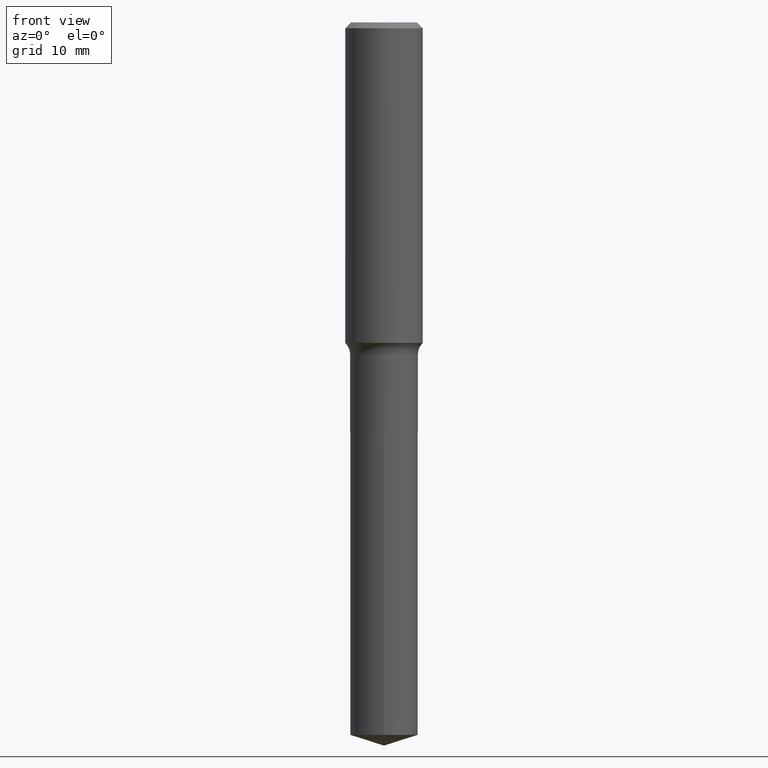
[diagram: clean part render]
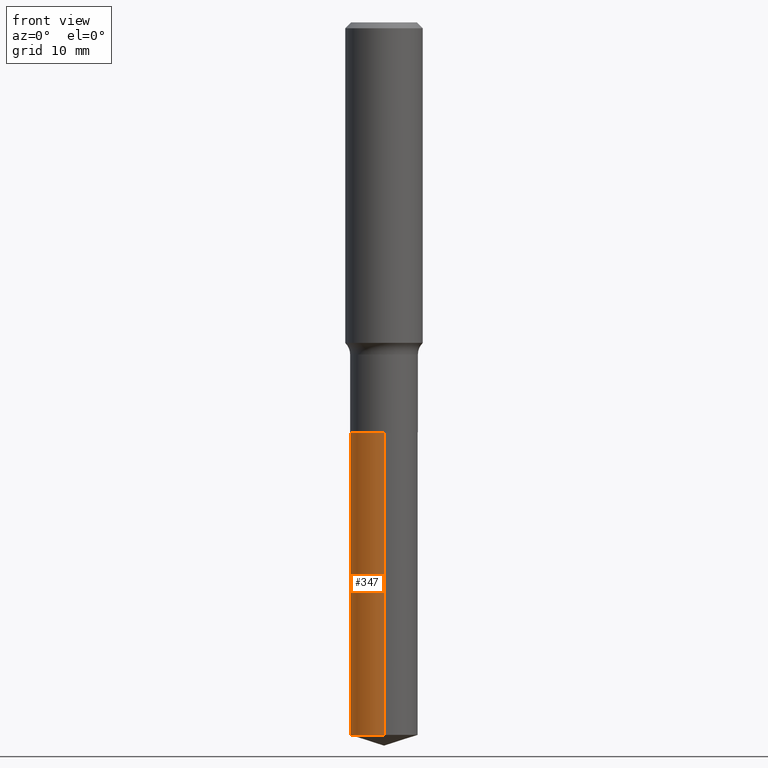
[diagram: same view with one face highlighted and labeled with its STEP entity id]
A machine part, front view. The second image highlights one B-rep face of the part: STEP entity #347.
In plain terms, the highlighted cylindrical surface (edge-blend (fillet) strip) has radius 4.1669 mm, axis along (-0, 0, 1).
Its self-contained STEP definition (entity closure, byte-faithful):
#10 = ORIENTED_EDGE ( 'NONE', *, *, #117, .F. ) ;
#14 = CIRCLE ( 'NONE', #366, 0.1640500000000000014 ) ;
#44 = VERTEX_POINT ( 'NONE', #58 ) ;
#58 = CARTESIAN_POINT ( 'NONE',  ( 1.165645358014528773E-15, 0.1640499999999879555, -3.448275233684403140 ) ) ;
#69 = AXIS2_PLACEMENT_3D ( 'NONE', #124, #430, #87 ) ;
#78 = FACE_OUTER_BOUND ( 'NONE', #191, .T. ) ;
#87 = DIRECTION ( 'NONE',  ( -6.982962677686265133E-15, -1.000000000000000000, 3.330506545156066257E-15 ) ) ;
#110 = VERTEX_POINT ( 'NONE', #279 ) ;
#111 = CARTESIAN_POINT ( 'NONE',  ( 1.165645358014492485E-15, 0.1640499999999930625, -1.984300000000000175 ) ) ;
#117 = EDGE_CURVE ( 'NONE', #344, #110, #180, .T. ) ;
#124 = CARTESIAN_POINT ( 'NONE',  ( 4.852543752113166066E-29, -6.928146420666452798E-15, -1.984299999999999731 ) ) ;
#180 = CIRCLE ( 'NONE', #69, 0.1640500000000000014 ) ;
#189 = EDGE_CURVE ( 'NONE', #44, #239, #14, .T. ) ;
#191 = EDGE_LOOP ( 'NONE', ( #338, #362, #462, #10 ) ) ;
#230 = CYLINDRICAL_SURFACE ( 'NONE', #477, 0.1640500000000000014 ) ;
#236 = EDGE_CURVE ( 'NONE', #44, #344, #372, .T. ) ;
#238 = VECTOR ( 'NONE', #348, 39.37007874015748143 ) ;
#239 = VERTEX_POINT ( 'NONE', #449 ) ;
#279 = CARTESIAN_POINT ( 'NONE',  ( -1.145555027274383345E-15, -0.1640500000000069125, -1.984299999999999065 ) ) ;
#286 = DIRECTION ( 'NONE',  ( -2.445372018377083114E-29, 3.491619944493098232E-15, 1.000000000000000000 ) ) ;
#297 = DIRECTION ( 'NONE',  ( -6.982962677686265133E-15, -1.000000000000000000, 3.330506545156066257E-15 ) ) ;
#309 = CARTESIAN_POINT ( 'NONE',  ( 4.852543752113166066E-29, -6.928146420666452798E-15, -1.984299999999999731 ) ) ;
#311 = LINE ( 'NONE', #463, #238 ) ;
#338 = ORIENTED_EDGE ( 'NONE', *, *, #236, .F. ) ;
#344 = VERTEX_POINT ( 'NONE', #489 ) ;
#345 = DIRECTION ( 'NONE',  ( -2.445372018377083114E-29, 3.491619944493098232E-15, 1.000000000000000000 ) ) ;
#347 = ADVANCED_FACE ( 'NONE', ( #78 ), #230, .T. ) ;
#348 = DIRECTION ( 'NONE',  ( -2.445372018377082834E-29, 3.491619944493097838E-15, 1.000000000000000000 ) ) ;
#362 = ORIENTED_EDGE ( 'NONE', *, *, #189, .T. ) ;
#366 = AXIS2_PLACEMENT_3D ( 'NONE', #411, #286, #297 ) ;
#372 = LINE ( 'NONE', #111, #375 ) ;
#375 = VECTOR ( 'NONE', #448, 39.37007874015748143 ) ;
#411 = CARTESIAN_POINT ( 'NONE',  ( 8.432507824162055663E-29, -1.203979154484285779E-14, -3.448275233684402696 ) ) ;
#430 = DIRECTION ( 'NONE',  ( -2.445372018377083114E-29, 3.491619944493098232E-15, 1.000000000000000000 ) ) ;
#448 = DIRECTION ( 'NONE',  ( -2.445372018377082834E-29, 3.491619944493097838E-15, 1.000000000000000000 ) ) ;
#449 = CARTESIAN_POINT ( 'NONE',  ( -1.145555027274347649E-15, -0.1640500000000120751, -3.448275233684402252 ) ) ;
#462 = ORIENTED_EDGE ( 'NONE', *, *, #471, .T. ) ;
#463 = CARTESIAN_POINT ( 'NONE',  ( -1.145555027274383345E-15, -0.1640500000000069125, -1.984299999999999065 ) ) ;
#470 = DIRECTION ( 'NONE',  ( -6.982962677686265133E-15, -1.000000000000000000, 3.330506545156066257E-15 ) ) ;
#471 = EDGE_CURVE ( 'NONE', #239, #110, #311, .T. ) ;
#477 = AXIS2_PLACEMENT_3D ( 'NONE', #309, #345, #470 ) ;
#489 = CARTESIAN_POINT ( 'NONE',  ( 1.165645358014528773E-15, 0.1640499999999930625, -1.984300000000000175 ) ) ;